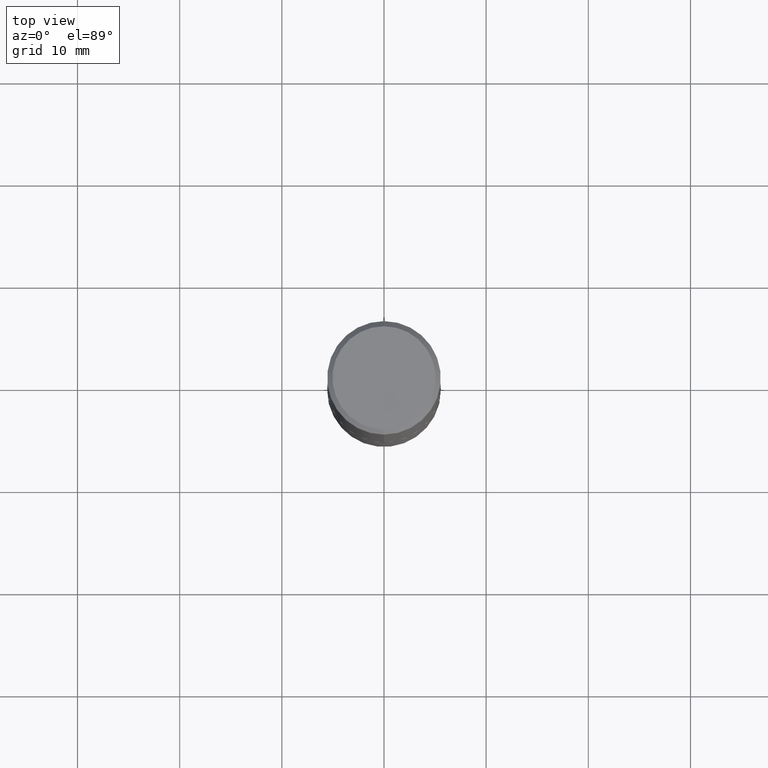
[diagram: clean part render]
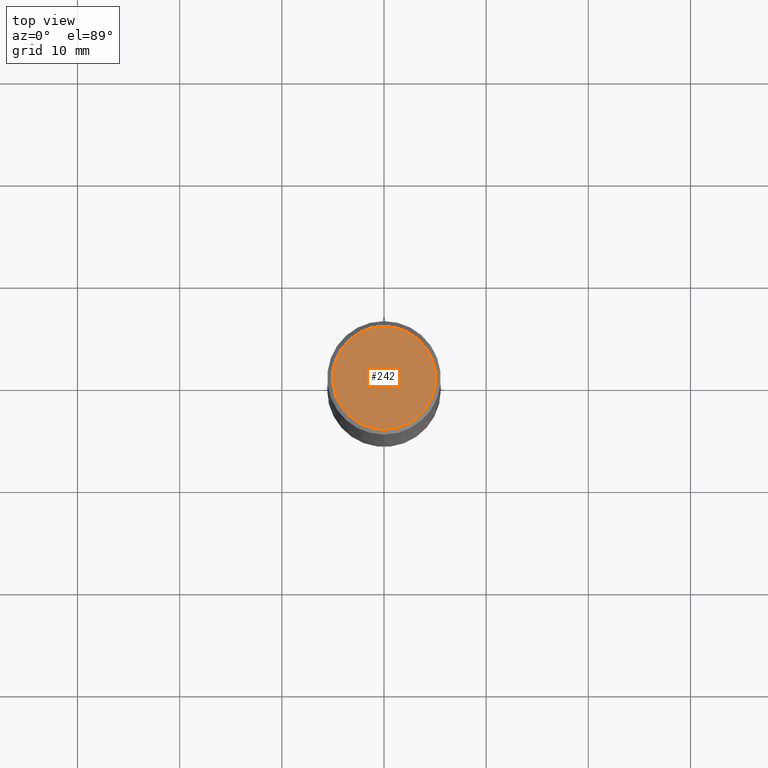
[diagram: same view with one face highlighted and labeled with its STEP entity id]
A machine part, top view. The second image highlights one B-rep face of the part: STEP entity #242.
In plain terms, the highlighted planar face has unit normal (0, -0, -1).
Its self-contained STEP definition (entity closure, byte-faithful):
#2 = DIRECTION ( 'NONE',  ( 2.445702576359042590E-29, -3.491146566648739573E-15, -1.000000000000000000 ) ) ;
#61 = DIRECTION ( 'NONE',  ( -2.445702576359043151E-29, 3.491146566648739573E-15, 1.000000000000000000 ) ) ;
#85 = ORIENTED_EDGE ( 'NONE', *, *, #292, .T. ) ;
#89 = EDGE_CURVE ( 'NONE', #203, #349, #149, .T. ) ;
#123 = PLANE ( 'NONE',  #124 ) ;
#124 = AXIS2_PLACEMENT_3D ( 'NONE', #283, #2, #161 ) ;
#137 = CARTESIAN_POINT ( 'NONE',  ( -1.432128957034806409E-15, -0.1987499999999998990, 7.791690939498065981E-16 ) ) ;
#149 = CIRCLE ( 'NONE', #367, 0.1987499999999998990 ) ;
#161 = DIRECTION ( 'NONE',  ( 6.982962677686265922E-15, 1.000000000000000000, -3.491146566648739573E-15 ) ) ;
#185 = AXIS2_PLACEMENT_3D ( 'NONE', #295, #197, #396 ) ;
#197 = DIRECTION ( 'NONE',  ( -2.445702576359043151E-29, 3.491146566648739573E-15, 1.000000000000000000 ) ) ;
#203 = VERTEX_POINT ( 'NONE', #318 ) ;
#242 = ADVANCED_FACE ( 'NONE', ( #278 ), #123, .F. ) ;
#267 = ORIENTED_EDGE ( 'NONE', *, *, #89, .T. ) ;
#278 = FACE_OUTER_BOUND ( 'NONE', #403, .T. ) ;
#283 = CARTESIAN_POINT ( 'NONE',  ( 1.387863832190144641E-15, 0.1987499999999998990, -6.512135232072516097E-16 ) ) ;
#292 = EDGE_CURVE ( 'NONE', #349, #203, #398, .T. ) ;
#295 = CARTESIAN_POINT ( 'NONE',  ( -2.086275126830390438E-45, 2.978077676543005587E-31, 8.530371382837000053E-17 ) ) ;
#318 = CARTESIAN_POINT ( 'NONE',  ( 1.457693458967007939E-15, 0.1987499999999998990, -6.085616662930666464E-16 ) ) ;
#337 = CARTESIAN_POINT ( 'NONE',  ( -2.086275126830390438E-45, 2.978077676543005587E-31, 8.530371382837000053E-17 ) ) ;
#349 = VERTEX_POINT ( 'NONE', #137 ) ;
#367 = AXIS2_PLACEMENT_3D ( 'NONE', #337, #61, #376 ) ;
#376 = DIRECTION ( 'NONE',  ( -6.982962677686265922E-15, -1.000000000000000000, 3.491146566648739178E-15 ) ) ;
#396 = DIRECTION ( 'NONE',  ( -6.982962677686265922E-15, -1.000000000000000000, 3.491146566648739178E-15 ) ) ;
#398 = CIRCLE ( 'NONE', #185, 0.1987499999999998990 ) ;
#403 = EDGE_LOOP ( 'NONE', ( #267, #85 ) ) ;